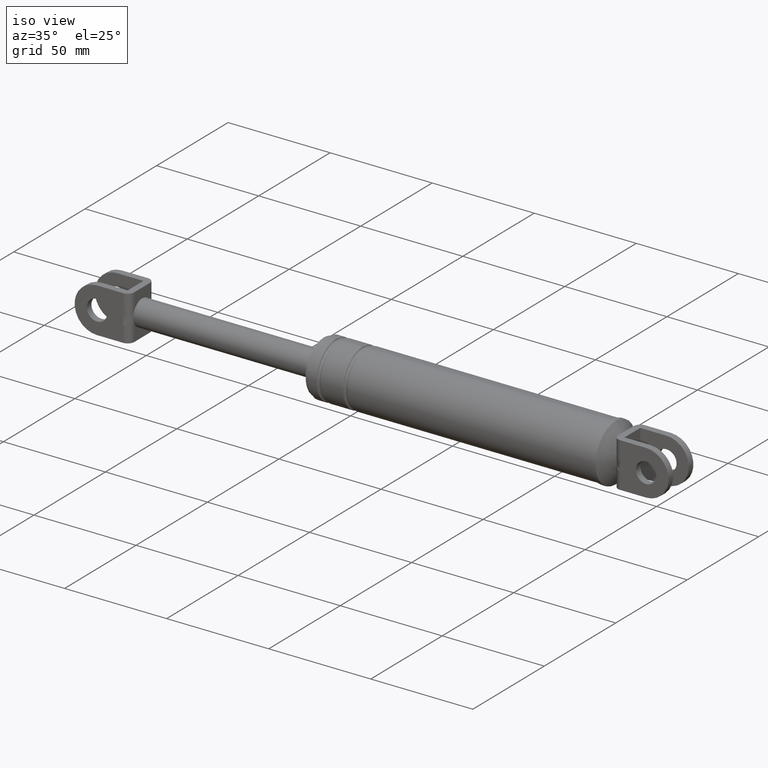
[diagram: clean part render]
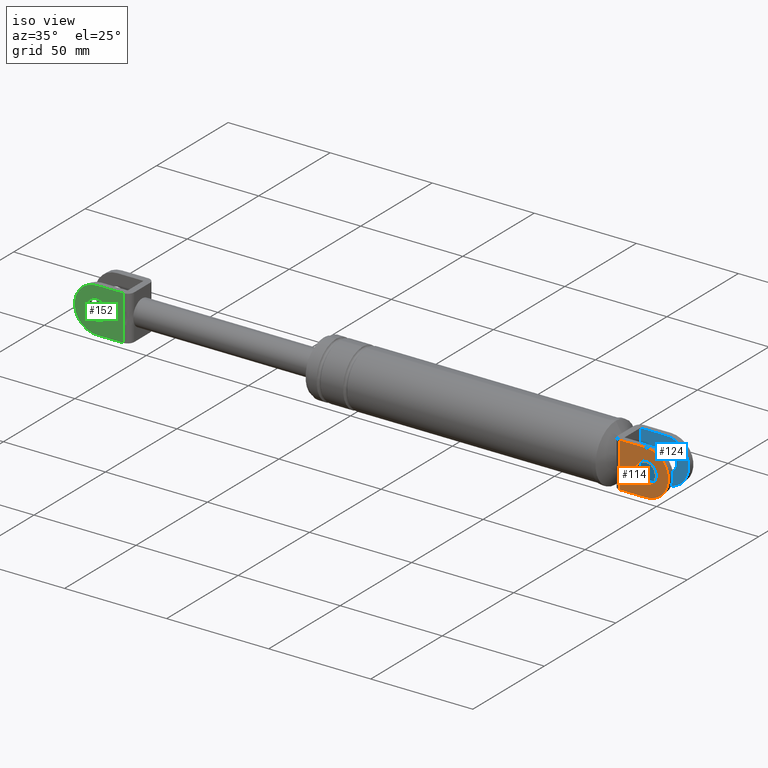
[diagram: same view with three faces highlighted in distinct colors, each labeled with its STEP entity id]
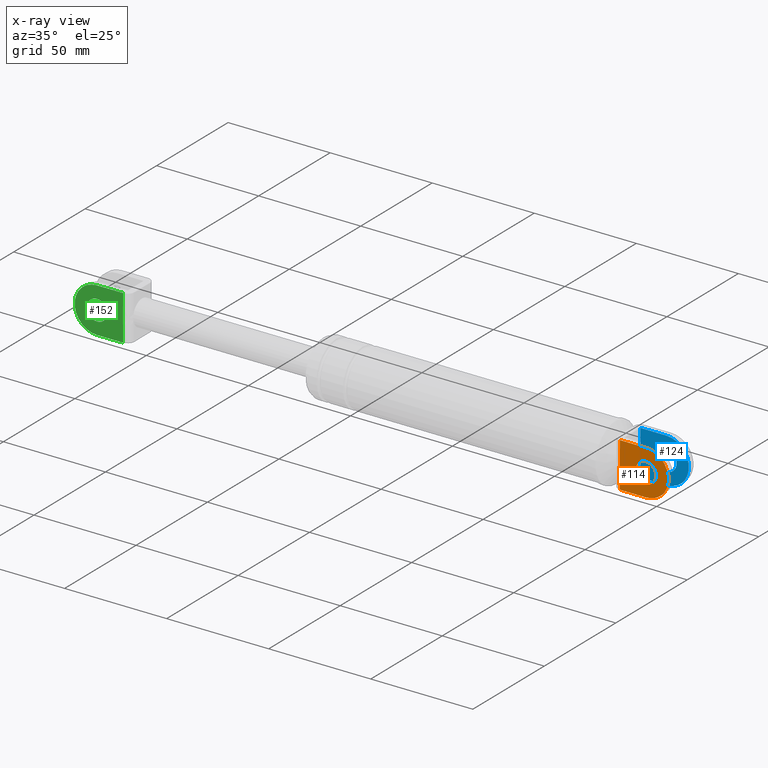
[diagram: x-ray of the same camera — body ghosted, the three highlighted faces saturated]
A machine part, iso view with three faces highlighted in distinct colors.
The next image is the same camera in x-ray (body ghosted, the three faces saturated) — at least one of them is partly hidden behind the body in this view.
Their STEP definitions:

[orange] entity #114 — the highlighted planar face has unit normal (0, 1, 0).
#114=ADVANCED_FACE('',(#197,#198),#196,.F.);
#196=PLANE('',#891);
#197=FACE_OUTER_BOUND('',#892,.T.);
#198=FACE_BOUND('',#893,.T.);
#888=CARTESIAN_POINT('',(3.35732724237E+002,-8.69999700000E+000,1.75236950677E+002));
#889=DIRECTION('',(0.00000000000E+000,1.00000000000E+000,0.00000000000E+000));
#890=DIRECTION('',(0.00000000000E+000,0.00000000000E+000,1.00000000000E+000));
#891=AXIS2_PLACEMENT_3D('',#888,#889,#890);
#892=EDGE_LOOP('',(#1404,#1405,#1406,#1407,#1408,#1409));
#893=EDGE_LOOP('',(#1410,#1411));
#1404=ORIENTED_EDGE('',*,*,#1716,.F.);
#1405=ORIENTED_EDGE('',*,*,#1717,.T.);
#1406=ORIENTED_EDGE('',*,*,#1713,.T.);
#1407=ORIENTED_EDGE('',*,*,#1718,.T.);
#1408=ORIENTED_EDGE('',*,*,#1719,.T.);
#1409=ORIENTED_EDGE('',*,*,#1720,.T.);
#1410=ORIENTED_EDGE('',*,*,#1721,.F.);
#1411=ORIENTED_EDGE('',*,*,#1722,.F.);
#1713=EDGE_CURVE('',#1900,#1893,#1901,.T.);
#1716=EDGE_CURVE('',#1920,#1921,#1922,.T.);
#1717=EDGE_CURVE('',#1920,#1900,#1928,.T.);
#1718=EDGE_CURVE('',#1893,#1934,#1935,.T.);
#1719=EDGE_CURVE('',#1934,#1941,#1942,.T.);
#1720=EDGE_CURVE('',#1941,#1921,#1948,.T.);
#1721=EDGE_CURVE('',#1954,#1955,#1956,.T.);
#1722=EDGE_CURVE('',#1955,#1954,#1962,.T.);
#1893=VERTEX_POINT('',#2925);
#1900=VERTEX_POINT('',#2930);
#1901=(BOUNDED_CURVE() B_SPLINE_CURVE(3,(#2931,#2932,#2933,#2934,#2935,#2936,#2937,#2938,#2939,#2940),.UNSPECIFIED.,.F.,.F.) B_SPLINE_CURVE_WITH_KNOTS((4,2,2,2,4),(0.00000000000E+000,1.19890467989E-003,2.39780935978E-003,3.59671403966E-003,4.79561871955E-003),.UNSPECIFIED.) CURVE() GEOMETRIC_REPRESENTATION_ITEM() RATIONAL_B_SPLINE_CURVE((1.00000000000E+000,1.00000000000E+000,1.00000000000E+000,1.00000000000E+000,1.00000000000E+000,1.00000000000E+000,1.00000000000E+000,1.00000000000E+000,1.00000000000E+000,1.00000000000E+000)) REPRESENTATION_ITEM('') );
#1920=VERTEX_POINT('',#2950);
#1921=VERTEX_POINT('',#2951);
#1922=LINE('',#2952,#2953);
#1928=LINE('',#2955,#2956);
#1934=VERTEX_POINT('',#2958);
#1935=LINE('',#2959,#2960);
#1941=VERTEX_POINT('',#2962);
#1942=LINE('',#2963,#2964);
#1948=CIRCLE('',#2969,1.10000000000E+001);
#1954=VERTEX_POINT('',#2970);
#1955=VERTEX_POINT('',#2971);
#1956=CIRCLE('',#2975,5.00000000000E+000);
#1962=CIRCLE('',#2979,5.00000000000E+000);
#2925=CARTESIAN_POINT('',(3.38155963961E+002,-8.69999700000E+000,1.86039029186E+002));
#2930=CARTESIAN_POINT('',(3.38155963961E+002,-8.69999700000E+000,1.90834874471E+002));
#2931=CARTESIAN_POINT('',(3.38155963961E+002,-8.69999700000E+000,1.90834874471E+002));
#2932=CARTESIAN_POINT('',(3.38155963961E+002,-8.69999700000E+000,1.90435218385E+002));
#2933=CARTESIAN_POINT('',(3.38144338616E+002,-8.69999700000E+000,1.90035682025E+002));
#2934=CARTESIAN_POINT('',(3.38124479689E+002,-8.69999700000E+000,1.89236574375E+002));
#2935=CARTESIAN_POINT('',(3.38116664108E+002,-8.69999700000E+000,1.88836998779E+002));
#2936=CARTESIAN_POINT('',(3.38116655121E+002,-8.69999700000E+000,1.88037686700E+002));
#2937=CARTESIAN_POINT('',(3.38124465793E+002,-8.69999700000E+000,1.87637928492E+002));
#2938=CARTESIAN_POINT('',(3.38144329265E+002,-8.69999700000E+000,1.86838557893E+002));
#2939=CARTESIAN_POINT('',(3.38155963961E+002,-8.69999700000E+000,1.86438905314E+002));
#2940=CARTESIAN_POINT('',(3.38155963961E+002,-8.69999700000E+000,1.86039029186E+002));
#2950=CARTESIAN_POINT('',(3.38155963961E+002,-8.69999700000E+000,1.99436951829E+002));
#2951=CARTESIAN_POINT('',(3.50955963001E+002,-8.69999700000E+000,1.99436951829E+002));
#2952=CARTESIAN_POINT('',(3.38155963961E+002,-8.69999700000E+000,1.99436951829E+002));
#2953=VECTOR('',#2954,1.27999990401E+001);
#2954=DIRECTION('',(1.00000000000E+000,0.00000000000E+000,0.00000000000E+000));
#2955=CARTESIAN_POINT('',(3.38155963961E+002,-8.69999700000E+000,1.99436951829E+002));
#2956=VECTOR('',#2957,8.60207735738E+000);
#2957=DIRECTION('',(0.00000000000E+000,0.00000000000E+000,-1.00000000000E+000));
#2958=CARTESIAN_POINT('',(3.38155963961E+002,-8.69999700000E+000,1.77436951829E+002));
#2959=CARTESIAN_POINT('',(3.38155963961E+002,-8.69999700000E+000,1.86039029186E+002));
#2960=VECTOR('',#2961,8.60207735738E+000);
#2961=DIRECTION('',(0.00000000000E+000,0.00000000000E+000,-1.00000000000E+000));
#2962=CARTESIAN_POINT('',(3.50955963001E+002,-8.69999700000E+000,1.77436951829E+002));
#2963=CARTESIAN_POINT('',(3.38155963961E+002,-8.69999700000E+000,1.77436951829E+002));
#2964=VECTOR('',#2965,1.27999990401E+001);
#2965=DIRECTION('',(1.00000000000E+000,0.00000000000E+000,0.00000000000E+000));
#2966=CARTESIAN_POINT('',(3.50955963961E+002,-8.69999700000E+000,1.88436951829E+002));
#2967=DIRECTION('',(-0.00000000000E+000,-1.00000000000E+000,0.00000000000E+000));
#2968=DIRECTION('',(-8.72664570491E-008,0.00000000000E+000,1.00000000000E+000));
#2969=AXIS2_PLACEMENT_3D('',#2966,#2967,#2968);
#2970=CARTESIAN_POINT('',(3.50955963961E+002,-8.69999700000E+000,1.83436951829E+002));
#2971=CARTESIAN_POINT('',(3.50955963961E+002,-8.69999700000E+000,1.93436951829E+002));
#2972=CARTESIAN_POINT('',(3.50955963961E+002,-8.69999700000E+000,1.88436951829E+002));
#2973=DIRECTION('',(-0.00000000000E+000,-1.00000000000E+000,0.00000000000E+000));
#2974=DIRECTION('',(-1.22460635382E-016,0.00000000000E+000,1.00000000000E+000));
#2975=AXIS2_PLACEMENT_3D('',#2972,#2973,#2974);
#2976=CARTESIAN_POINT('',(3.50955963961E+002,-8.69999700000E+000,1.88436951829E+002));
#2977=DIRECTION('',(-0.00000000000E+000,-1.00000000000E+000,0.00000000000E+000));
#2978=DIRECTION('',(-1.22460635382E-016,0.00000000000E+000,1.00000000000E+000));
#2979=AXIS2_PLACEMENT_3D('',#2976,#2977,#2978);

[blue] entity #124 — the highlighted planar face has unit normal (0, 1, 0).
#124=ADVANCED_FACE('',(#299,#300),#298,.F.);
#298=PLANE('',#943);
#299=FACE_OUTER_BOUND('',#944,.T.);
#300=FACE_BOUND('',#945,.T.);
#940=CARTESIAN_POINT('',(3.35775977161E+002,5.50000000000E+000,1.75236950677E+002));
#941=DIRECTION('',(0.00000000000E+000,1.00000000000E+000,0.00000000000E+000));
#942=DIRECTION('',(0.00000000000E+000,0.00000000000E+000,1.00000000000E+000));
#943=AXIS2_PLACEMENT_3D('',#940,#941,#942);
#944=EDGE_LOOP('',(#1452,#1453,#1454,#1455));
#945=EDGE_LOOP('',(#1456,#1457));
#1452=ORIENTED_EDGE('',*,*,#1751,.T.);
#1453=ORIENTED_EDGE('',*,*,#1747,.F.);
#1454=ORIENTED_EDGE('',*,*,#1752,.F.);
#1455=ORIENTED_EDGE('',*,*,#1753,.T.);
#1456=ORIENTED_EDGE('',*,*,#1754,.T.);
#1457=ORIENTED_EDGE('',*,*,#1755,.T.);
#1747=EDGE_CURVE('',#2126,#2127,#2128,.T.);
#1751=EDGE_CURVE('',#2154,#2127,#2155,.T.);
#1752=EDGE_CURVE('',#2161,#2126,#2162,.T.);
#1753=EDGE_CURVE('',#2161,#2154,#2168,.T.);
#1754=EDGE_CURVE('',#2174,#2175,#2176,.T.);
#1755=EDGE_CURVE('',#2175,#2174,#2182,.T.);
#2126=VERTEX_POINT('',#3077);
#2127=VERTEX_POINT('',#3078);
#2128=CIRCLE('',#3082,1.10000000000E+001);
#2154=VERTEX_POINT('',#3095);
#2155=LINE('',#3096,#3097);
#2161=VERTEX_POINT('',#3099);
#2162=LINE('',#3100,#3101);
#2168=LINE('',#3103,#3104);
#2174=VERTEX_POINT('',#3106);
#2175=VERTEX_POINT('',#3107);
#2176=CIRCLE('',#3111,5.00000000000E+000);
#2182=CIRCLE('',#3115,5.00000000000E+000);
#3077=CARTESIAN_POINT('',(3.50955963001E+002,5.50000000000E+000,1.99436951829E+002));
#3078=CARTESIAN_POINT('',(3.50955963001E+002,5.50000000000E+000,1.77436951829E+002));
#3079=CARTESIAN_POINT('',(3.50955963961E+002,5.50000000000E+000,1.88436951829E+002));
#3080=DIRECTION('',(0.00000000000E+000,1.00000000000E+000,0.00000000000E+000));
#3081=DIRECTION('',(-8.72664570491E-008,0.00000000000E+000,1.00000000000E+000));
#3082=AXIS2_PLACEMENT_3D('',#3079,#3080,#3081);
#3095=CARTESIAN_POINT('',(3.38155975961E+002,5.50000000000E+000,1.77436951829E+002));
#3096=CARTESIAN_POINT('',(3.38155975961E+002,5.50000000000E+000,1.77436951829E+002));
#3097=VECTOR('',#3098,1.27999870401E+001);
#3098=DIRECTION('',(1.00000000000E+000,0.00000000000E+000,0.00000000000E+000));
#3099=CARTESIAN_POINT('',(3.38155975961E+002,5.50000000000E+000,1.99436951829E+002));
#3100=CARTESIAN_POINT('',(3.38155975961E+002,5.50000000000E+000,1.99436951829E+002));
#3101=VECTOR('',#3102,1.27999870401E+001);
#3102=DIRECTION('',(1.00000000000E+000,0.00000000000E+000,0.00000000000E+000));
#3103=CARTESIAN_POINT('',(3.38155975961E+002,5.50000000000E+000,1.99436951829E+002));
#3104=VECTOR('',#3105,2.20000000000E+001);
#3105=DIRECTION('',(0.00000000000E+000,0.00000000000E+000,-1.00000000000E+000));
#3106=CARTESIAN_POINT('',(3.50955963961E+002,5.50000000000E+000,1.93436951829E+002));
#3107=CARTESIAN_POINT('',(3.50955963961E+002,5.50000000000E+000,1.83436951829E+002));
#3108=CARTESIAN_POINT('',(3.50955963961E+002,5.50000000000E+000,1.88436951829E+002));
#3109=DIRECTION('',(0.00000000000E+000,1.00000000000E+000,0.00000000000E+000));
#3110=DIRECTION('',(-1.22460635382E-016,0.00000000000E+000,1.00000000000E+000));
#3111=AXIS2_PLACEMENT_3D('',#3108,#3109,#3110);
#3112=CARTESIAN_POINT('',(3.50955963961E+002,5.50000000000E+000,1.88436951829E+002));
#3113=DIRECTION('',(0.00000000000E+000,1.00000000000E+000,0.00000000000E+000));
#3114=DIRECTION('',(-1.22460635382E-016,0.00000000000E+000,1.00000000000E+000));
#3115=AXIS2_PLACEMENT_3D('',#3112,#3113,#3114);

[green] entity #152 — the highlighted planar face has unit normal (0, -1, 0).
#152=ADVANCED_FACE('',(#583,#584),#582,.T.);
#582=PLANE('',#1223);
#583=FACE_OUTER_BOUND('',#1224,.T.);
#584=FACE_BOUND('',#1225,.T.);
#1220=CARTESIAN_POINT('',(6.85670477192E+001,-8.69999700000E+000,2.01636951829E+002));
#1221=DIRECTION('',(0.00000000000E+000,-1.00000000000E+000,0.00000000000E+000));
#1222=DIRECTION('',(0.00000000000E+000,0.00000000000E+000,-1.00000000000E+000));
#1223=AXIS2_PLACEMENT_3D('',#1220,#1221,#1222);
#1224=EDGE_LOOP('',(#1584,#1585,#1586,#1587,#1588,#1589));
#1225=EDGE_LOOP('',(#1590,#1591));
#1584=ORIENTED_EDGE('',*,*,#1802,.F.);
#1585=ORIENTED_EDGE('',*,*,#1803,.T.);
#1586=ORIENTED_EDGE('',*,*,#1804,.T.);
#1587=ORIENTED_EDGE('',*,*,#1805,.T.);
#1588=ORIENTED_EDGE('',*,*,#1806,.T.);
#1589=ORIENTED_EDGE('',*,*,#1807,.T.);
#1590=ORIENTED_EDGE('',*,*,#1808,.F.);
#1591=ORIENTED_EDGE('',*,*,#1809,.F.);
#1802=EDGE_CURVE('',#2486,#2487,#2488,.T.);
#1803=EDGE_CURVE('',#2486,#2494,#2495,.T.);
#1804=EDGE_CURVE('',#2494,#2501,#2502,.T.);
#1805=EDGE_CURVE('',#2501,#2508,#2509,.T.);
#1806=EDGE_CURVE('',#2508,#2515,#2516,.T.);
#1807=EDGE_CURVE('',#2515,#2487,#2522,.T.);
#1808=EDGE_CURVE('',#2528,#2529,#2530,.T.);
#1809=EDGE_CURVE('',#2529,#2528,#2536,.T.);
#2486=VERTEX_POINT('',#3294);
#2487=VERTEX_POINT('',#3295);
#2488=LINE('',#3296,#3297);
#2494=VERTEX_POINT('',#3299);
#2495=LINE('',#3300,#3301);
#2501=VERTEX_POINT('',#3303);
#2502=(BOUNDED_CURVE() B_SPLINE_CURVE(3,(#3304,#3305,#3306,#3307,#3308,#3309,#3310,#3311,#3312,#3313),.UNSPECIFIED.,.F.,.F.) B_SPLINE_CURVE_WITH_KNOTS((4,2,2,2,4),(0.00000000000E+000,1.48458878572E-003,2.96917757145E-003,4.45376635717E-003,5.93835514290E-003),.UNSPECIFIED.) CURVE() GEOMETRIC_REPRESENTATION_ITEM() RATIONAL_B_SPLINE_CURVE((1.00000000000E+000,1.00000000000E+000,1.00000000000E+000,1.00000000000E+000,1.00000000000E+000,1.00000000000E+000,1.00000000000E+000,1.00000000000E+000,1.00000000000E+000,1.00000000000E+000)) REPRESENTATION_ITEM('') );
#2508=VERTEX_POINT('',#3314);
#2509=LINE('',#3315,#3316);
#2515=VERTEX_POINT('',#3318);
#2516=LINE('',#3319,#3320);
#2522=CIRCLE('',#3325,1.10000000000E+001);
#2528=VERTEX_POINT('',#3326);
#2529=VERTEX_POINT('',#3327);
#2530=CIRCLE('',#3331,5.00000000000E+000);
#2536=CIRCLE('',#3335,5.00000000000E+000);
#3294=CARTESIAN_POINT('',(9.47559639609E+001,-8.69999700000E+000,1.77436951829E+002));
#3295=CARTESIAN_POINT('',(8.19559630010E+001,-8.69999700000E+000,1.77436951829E+002));
#3296=CARTESIAN_POINT('',(9.47559639609E+001,-8.69999700000E+000,1.77436951829E+002));
#3297=VECTOR('',#3298,1.28000009599E+001);
#3298=DIRECTION('',(-1.00000000000E+000,0.00000000000E+000,0.00000000000E+000));
#3299=CARTESIAN_POINT('',(9.47559639609E+001,-8.69999700000E+000,1.85468360749E+002));
#3300=CARTESIAN_POINT('',(9.47559639609E+001,-8.69999700000E+000,1.77436951829E+002));
#3301=VECTOR('',#3302,8.03140892004E+000);
#3302=DIRECTION('',(0.00000000000E+000,0.00000000000E+000,1.00000000000E+000));
#3303=CARTESIAN_POINT('',(9.47559639609E+001,-8.69999700000E+000,1.91405542909E+002));
#3304=CARTESIAN_POINT('',(9.47559639609E+001,-8.69999700000E+000,1.85468360749E+002));
#3305=CARTESIAN_POINT('',(9.47559639609E+001,-8.69999700000E+000,1.85963223869E+002));
#3306=CARTESIAN_POINT('',(9.47815037183E+001,-8.69999700000E+000,1.86457530351E+002));
#3307=CARTESIAN_POINT('',(9.48267268567E+001,-8.69999700000E+000,1.87446241825E+002));
#3308=CARTESIAN_POINT('',(9.48450668156E+001,-8.69999700000E+000,1.87940697091E+002));
#3309=CARTESIAN_POINT('',(9.48451263781E+001,-8.69999700000E+000,1.88930460871E+002));
#3310=CARTESIAN_POINT('',(9.48268117565E+001,-8.69999700000E+000,1.89425697845E+002));
#3311=CARTESIAN_POINT('',(9.47815584890E+001,-8.69999700000E+000,1.90415283351E+002));
#3312=CARTESIAN_POINT('',(9.47559639609E+001,-8.69999700000E+000,1.90909974341E+002));
#3313=CARTESIAN_POINT('',(9.47559639609E+001,-8.69999700000E+000,1.91405542909E+002));
#3314=CARTESIAN_POINT('',(9.47559639609E+001,-8.69999700000E+000,1.99436951829E+002));
#3315=CARTESIAN_POINT('',(9.47559639609E+001,-8.69999700000E+000,1.91405542909E+002));
#3316=VECTOR('',#3317,8.03140892004E+000);
#3317=DIRECTION('',(0.00000000000E+000,0.00000000000E+000,1.00000000000E+000));
#3318=CARTESIAN_POINT('',(8.19559630010E+001,-8.69999700000E+000,1.99436951829E+002));
#3319=CARTESIAN_POINT('',(9.47559639609E+001,-8.69999700000E+000,1.99436951829E+002));
#3320=VECTOR('',#3321,1.28000009599E+001);
#3321=DIRECTION('',(-1.00000000000E+000,0.00000000000E+000,0.00000000000E+000));
#3322=CARTESIAN_POINT('',(8.19559639609E+001,-8.69999700000E+000,1.88436951829E+002));
#3323=DIRECTION('',(0.00000000000E+000,-1.00000000000E+000,0.00000000000E+000));
#3324=DIRECTION('',(-0.00000000000E+000,-0.00000000000E+000,-1.00000000000E+000));
#3325=AXIS2_PLACEMENT_3D('',#3322,#3323,#3324);
#3326=CARTESIAN_POINT('',(8.19559639609E+001,-8.69999700000E+000,1.83436951829E+002));
#3327=CARTESIAN_POINT('',(8.19559639609E+001,-8.69999700000E+000,1.93436951829E+002));
#3328=CARTESIAN_POINT('',(8.19559639609E+001,-8.69999700000E+000,1.88436951829E+002));
#3329=DIRECTION('',(-0.00000000000E+000,-1.00000000000E+000,0.00000000000E+000));
#3330=DIRECTION('',(-1.22460635382E-016,0.00000000000E+000,1.00000000000E+000));
#3331=AXIS2_PLACEMENT_3D('',#3328,#3329,#3330);
#3332=CARTESIAN_POINT('',(8.19559639609E+001,-8.69999700000E+000,1.88436951829E+002));
#3333=DIRECTION('',(-0.00000000000E+000,-1.00000000000E+000,0.00000000000E+000));
#3334=DIRECTION('',(-1.22460635382E-016,0.00000000000E+000,1.00000000000E+000));
#3335=AXIS2_PLACEMENT_3D('',#3332,#3333,#3334);